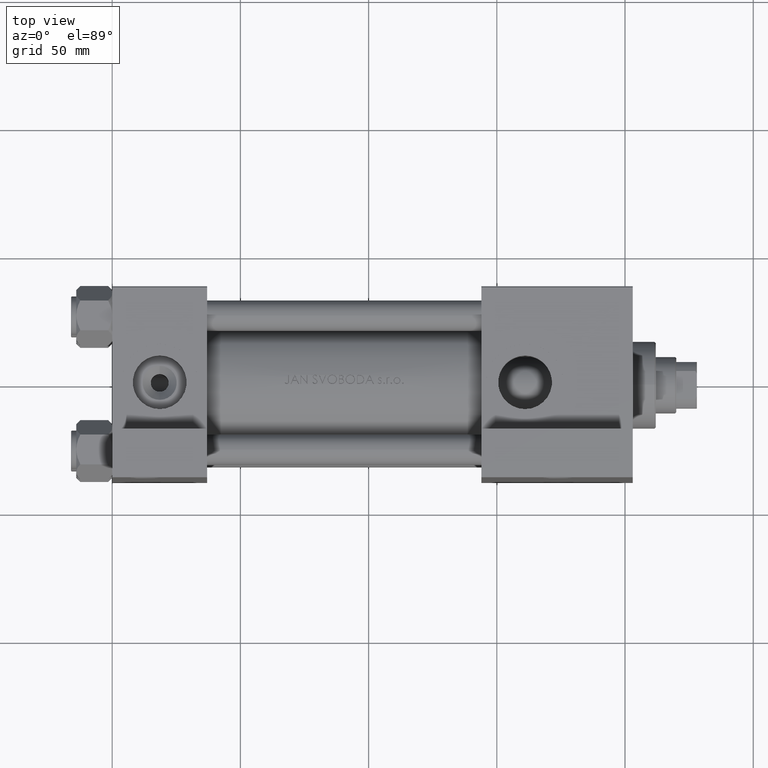
[diagram: clean part render]
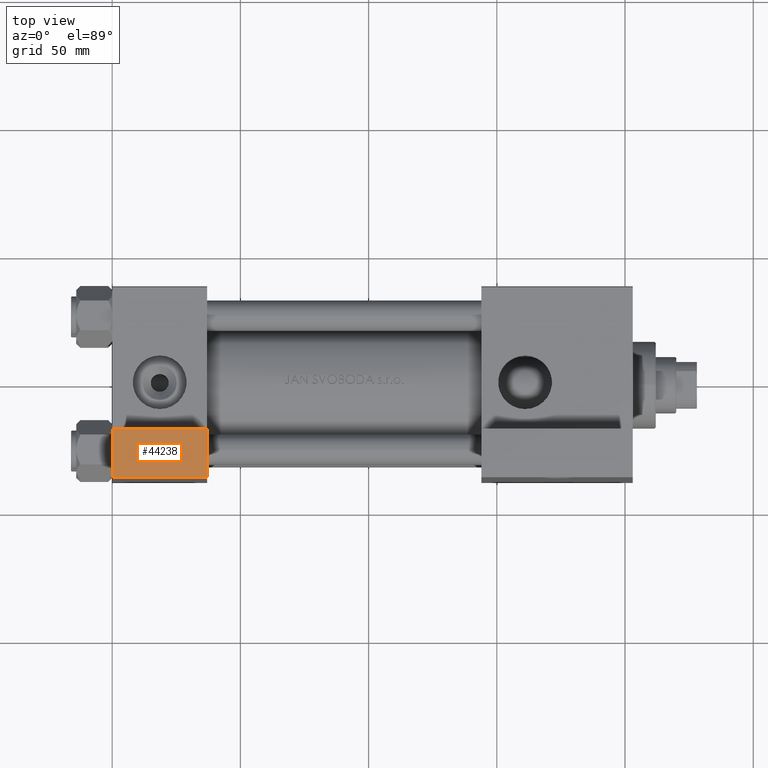
[diagram: same view with one face highlighted and labeled with its STEP entity id]
A machine part, top view. The second image highlights one B-rep face of the part: STEP entity #44238.
In plain terms, the highlighted planar face has unit normal (0, 0, 1).
Its self-contained STEP definition (entity closure, byte-faithful):
#919 = CARTESIAN_POINT ( 'NONE',  ( 37.00000000000000000, -63.49999999999998579, 26.72167621838007889 ) ) ;
#5785 = ORIENTED_EDGE ( 'NONE', *, *, #17739, .F. ) ;
#6197 = CARTESIAN_POINT ( 'NONE',  ( 3.977209754999747208E-16, -63.50000000000000000, -37.49999999999999289 ) ) ;
#9444 = DIRECTION ( 'NONE',  ( -1.000000000000000000, -0.000000000000000000, -0.000000000000000000 ) ) ;
#12127 = CARTESIAN_POINT ( 'NONE',  ( 3.977209754999747208E-16, -63.50000000000000000, -18.50000000000000355 ) ) ;
#16979 = VERTEX_POINT ( 'NONE', #12127 ) ;
#17739 = EDGE_CURVE ( 'NONE', #16979, #47527, #30847, .T. ) ;
#17870 = VERTEX_POINT ( 'NONE', #41967 ) ;
#18094 = FACE_OUTER_BOUND ( 'NONE', #45691, .T. ) ;
#19616 = EDGE_CURVE ( 'NONE', #17870, #25120, #25121, .T. ) ;
#19906 = CARTESIAN_POINT ( 'NONE',  ( 3.977209754999747208E-16, -63.50000000000000000, -18.50000000000000355 ) ) ;
#21397 = VECTOR ( 'NONE', #31273, 1000.000000000000000 ) ;
#21594 = DIRECTION ( 'NONE',  ( 0.000000000000000000, -1.734723475976806848E-16, -1.000000000000000000 ) ) ;
#24242 = LINE ( 'NONE', #39445, #38892 ) ;
#25120 = VERTEX_POINT ( 'NONE', #44785 ) ;
#25121 = LINE ( 'NONE', #6197, #45333 ) ;
#26287 = CARTESIAN_POINT ( 'NONE',  ( 3.977209754999747208E-16, -63.49999999999998579, 26.72167621838007889 ) ) ;
#26732 = ORIENTED_EDGE ( 'NONE', *, *, #42574, .F. ) ;
#26915 = VECTOR ( 'NONE', #31332, 1000.000000000000000 ) ;
#28449 = DIRECTION ( 'NONE',  ( 0.000000000000000000, -1.734723475976806848E-16, -1.000000000000000000 ) ) ;
#30847 = LINE ( 'NONE', #19906, #26915 ) ;
#30871 = CARTESIAN_POINT ( 'NONE',  ( 37.00000000000000000, -63.50000000000000000, -18.50000000000000355 ) ) ;
#31273 = DIRECTION ( 'NONE',  ( 0.000000000000000000, -1.734723475976806848E-16, -1.000000000000000000 ) ) ;
#31332 = DIRECTION ( 'NONE',  ( 1.000000000000000000, 0.000000000000000000, 0.000000000000000000 ) ) ;
#37267 = PLANE ( 'NONE',  #46153 ) ;
#38892 = VECTOR ( 'NONE', #28449, 1000.000000000000000 ) ;
#39445 = CARTESIAN_POINT ( 'NONE',  ( 3.977209754999747208E-16, -63.49999999999998579, 26.72167621838007889 ) ) ;
#39603 = ORIENTED_EDGE ( 'NONE', *, *, #41869, .T. ) ;
#40779 = DIRECTION ( 'NONE',  ( 0.000000000000000000, -1.000000000000000000, 1.734723475976806848E-16 ) ) ;
#41869 = EDGE_CURVE ( 'NONE', #16979, #25120, #24242, .T. ) ;
#41967 = CARTESIAN_POINT ( 'NONE',  ( 37.00000000000000000, -63.50000000000000000, -37.49999999999999289 ) ) ;
#42574 = EDGE_CURVE ( 'NONE', #47527, #17870, #47234, .T. ) ;
#44238 = ADVANCED_FACE ( 'NONE', ( #18094 ), #37267, .T. ) ;
#44785 = CARTESIAN_POINT ( 'NONE',  ( 3.977209754999747208E-16, -63.50000000000000000, -37.49999999999999289 ) ) ;
#45333 = VECTOR ( 'NONE', #9444, 1000.000000000000000 ) ;
#45691 = EDGE_LOOP ( 'NONE', ( #5785, #39603, #48971, #26732 ) ) ;
#46153 = AXIS2_PLACEMENT_3D ( 'NONE', #26287, #40779, #21594 ) ;
#47234 = LINE ( 'NONE', #919, #21397 ) ;
#47527 = VERTEX_POINT ( 'NONE', #30871 ) ;
#48971 = ORIENTED_EDGE ( 'NONE', *, *, #19616, .F. ) ;